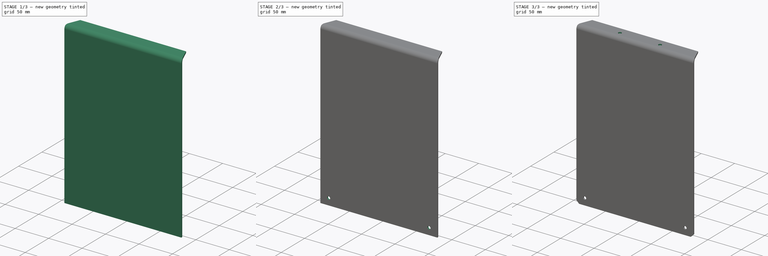
[diagram: build sequence overview — one tinted view per stage of 3, left to right]
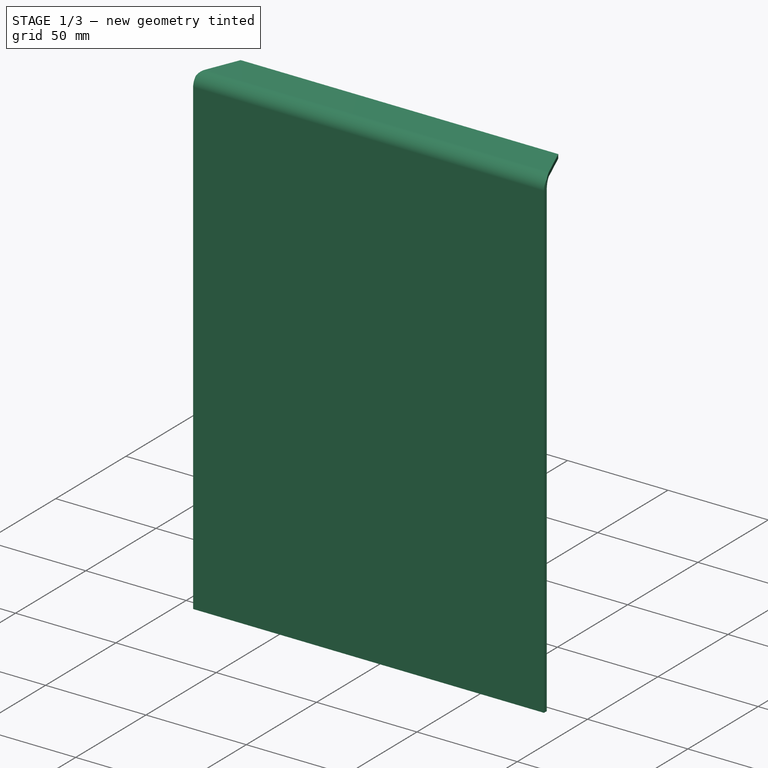
[diagram: stage 1 of 3 — iso view after this stage's code; geometry added in this stage tinted green]
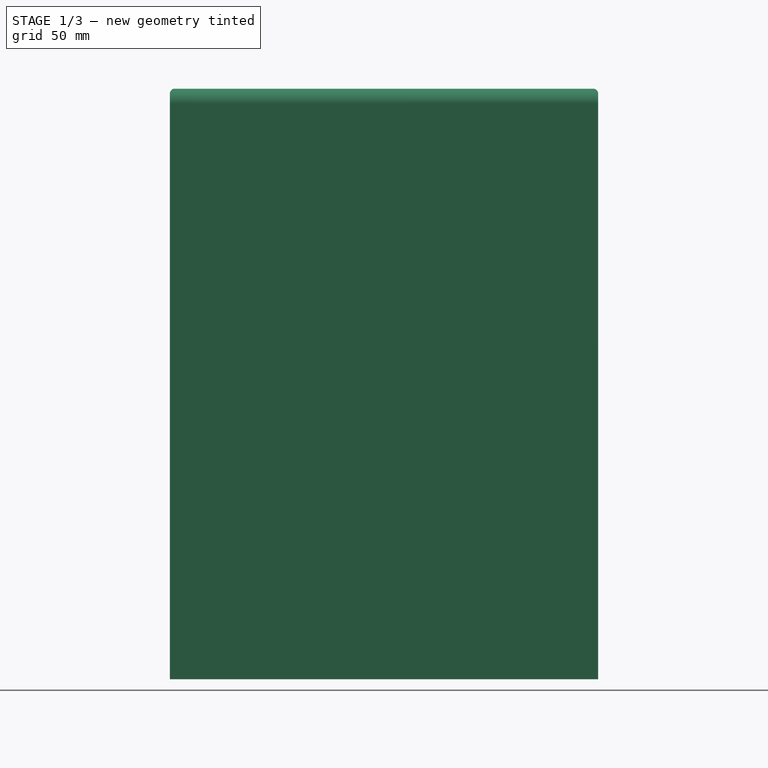
[diagram: stage 1 of 3 — front view after this stage's code; geometry added in this stage tinted green]
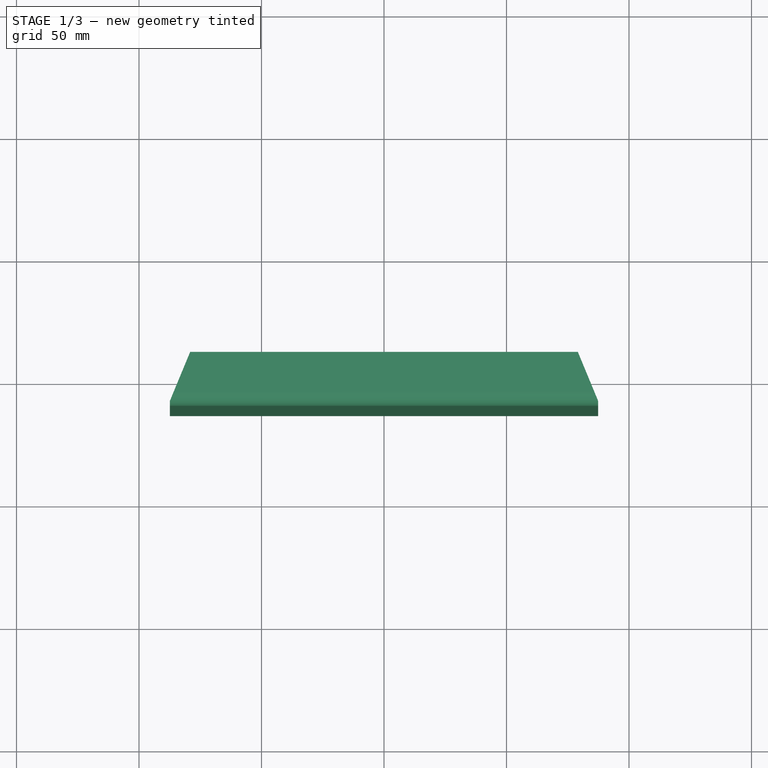
[diagram: stage 1 of 3 — top view after this stage's code; geometry added in this stage tinted green]
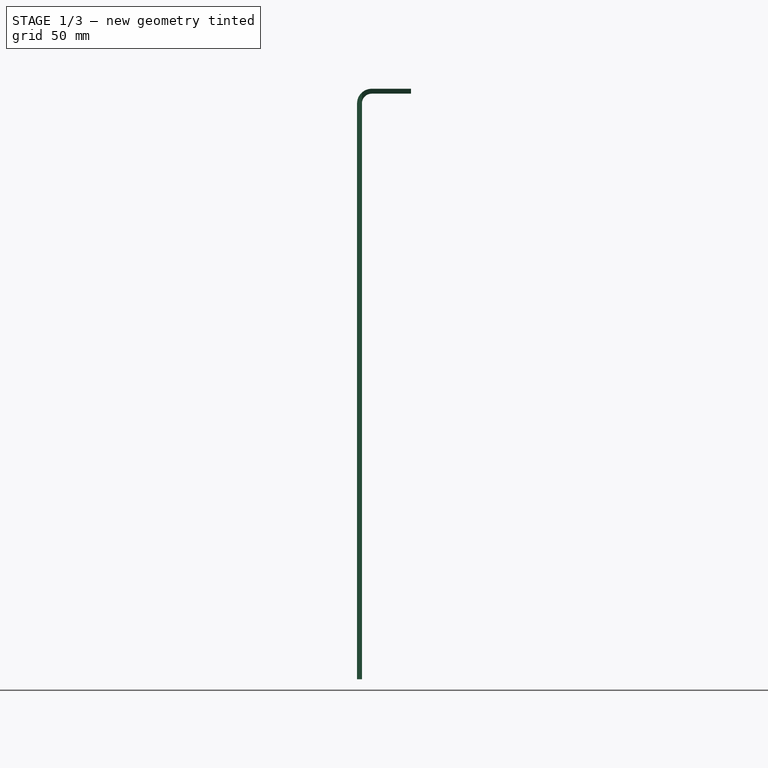
[diagram: stage 1 of 3 — right view after this stage's code; geometry added in this stage tinted green]
FCSTD DOCUMENT  (FreeCAD 1.0R39319 (Git))
Label: OCT-UFPNL-AA
License: Creative Commons Attribution 4.0
LicenseURL: https://creativecommons.org/licenses/by/4.0/
objects: Sketcher::SketchObject×4, PartDesign::Plane×2, PartDesign::Hole×2, App::Link×1, PartDesign::FeaturePython×1, PartDesign::Pocket×1, PartDesign::Chamfer×1, PartDesign::Body×1
note: 25 computed .brp shape members not serialized (recipe doc carries the construction recipe); baked Part::Feature solids carry a one-line shape summary decoded from their .brp
EXTERNAL_REF file=../master.FCStd obj=Spreadsheet

FEATURE [Sketcher::SketchObject] Sketch
  ArcFitTolerance = 1e-06
  AttachmentSupport = -> [YZ_Plane]
  FullyConstrained = true
  MakeInternals = false
  MapMode = 5
  Placement = pos=(0,0,0) rot=(0.57735,0.57735,0.57735;2.0944rad)
  expr: Constraints[5] = <<dims>>.iwFurnace / 2
  expr: Constraints[6] = <<dims>>.hUpPanel
  sketch-geometry (2):
    g0: LineSegment StartX=-211 StartY=239 StartZ=0 EndX=-191 EndY=239 EndZ=0
    g1: LineSegment StartX=-211 StartY=239 StartZ=0 EndX=-211 EndY=0 EndZ=0
  constraints (7):
    c: Horizontal(g0)
    c: DistanceX(g0,g0) = 20
    c: Coincident(g1,g0)
    c: PointOnObject(g1,g-1)
    c: Vertical(g1)
    c: DistanceX(g1,g-1) = 211
    c: DistanceY(g1,g1) = 239
FEATURE [App::Link] Link  label="dims"
  LinkedObject = -> <external ../master.FCStd>#Spreadsheet
FEATURE [Sketcher::SketchObject] Sketch001
  ArcFitTolerance = 1e-06
  AttachmentSupport = -> [XY_Plane]
  FullyConstrained = true
  MakeInternals = false
  MapMode = 5
  expr: Constraints[24] = <<dims>>.iwFurnace
  sketch-geometry (13):
    g0: LineSegment [constr] StartX=87.3991 StartY=211 StartZ=0 EndX=-87.3991 EndY=211 EndZ=0
    g1: LineSegment [constr] StartX=-87.3991 StartY=211 StartZ=0 EndX=-211 EndY=87.3991 EndZ=0
    g2: LineSegment [constr] StartX=-211 StartY=87.3991 StartZ=0 EndX=-211 EndY=-87.3991 EndZ=0
    g3: LineSegment [constr] StartX=-211 StartY=-87.3991 StartZ=0 EndX=-87.3991 EndY=-211 EndZ=0
    g4: LineSegment [constr] StartX=-87.3991 StartY=-211 StartZ=0 EndX=87.3991 EndY=-211 EndZ=0
    g5: LineSegment [constr] StartX=87.3991 StartY=-211 StartZ=0 EndX=211 EndY=-87.3991 EndZ=0
    g6: LineSegment [constr] StartX=211 StartY=-87.3991 StartZ=0 EndX=211 EndY=87.3991 EndZ=0
    g7: LineSegment [constr] StartX=211 StartY=87.3991 StartZ=0 EndX=87.3991 EndY=211 EndZ=0
    g8: Circle [constr] CenterX=0 CenterY=0 CenterZ=0 NormalX=0 NormalY=0 NormalZ=1 AngleXU=0 Radius=228.385
    g9: LineSegment StartX=0 StartY=0 StartZ=0 EndX=-100 EndY=-241.421 EndZ=0
    g10: LineSegment [constr] StartX=-100 StartY=-241.421 StartZ=0 EndX=100 EndY=-241.421 EndZ=0
    g11: LineSegment StartX=0 StartY=0 StartZ=0 EndX=100 EndY=-241.421 EndZ=0
    g12: ArcOfCircle CenterX=0 CenterY=0 CenterZ=0 NormalX=0 NormalY=0 NormalZ=1 AngleXU=0 Radius=261.313 StartAngle=5.10509 EndAngle=10.6029
  constraints (30):
    c: Coincident(g0,g1)
    c: Coincident(g1,g2)
    c: Coincident(g2,g3)
    c: Coincident(g3,g4)
    c: Coincident(g4,g5)
    c: Coincident(g5,g6)
    c: Coincident(g6,g7)
    c: Coincident(g7,g0)
    c: Equal(g0, g1-g7) x7
    c: PointOnObject(g0,g8)
    c: PointOnObject(g1,g8)
    c: PointOnObject(g2,g8)
    c: PointOnObject(g3,g8)
    c: PointOnObject(g4,g8)
    c: PointOnObject(g5,g8)
    c: PointOnObject(g6,g8)
    c: PointOnObject(g7,g8)
    c: Horizontal(g4)
    c: DistanceY(g3,g0) = 422
    c: Coincident(g8,g-1)
    c: Coincident(g10,g9)
    c: Coincident(g11,g9)
    c: Coincident(g9,g8)
    c: Coincident(g11,g10)
    c: Horizontal(g10)
    c: DistanceX(g10,g10) = 200
    c: Coincident(g12,g8)
    c: Coincident(g12,g10)
    c: Coincident(g12,g9)
    c: PointOnObject(g4,g11)
FEATURE [PartDesign::Plane] DatumPlane  label="inner wall side"
  AttachmentOffset = pos=(0,0,211) rot=(0,0,1;0rad)
  AttachmentSupport = -> [XZ_Plane]
  Length = 60
  MapMode = 5
  Placement = pos=(0,-211,4.69e-14) rot=(1,0,0;1.5708rad)
  ResizeMode = 0
  Width = 60
  expr: .AttachmentOffset.Base.z = <<dims>>.iwFurnace / 2
FEATURE [PartDesign::Plane] DatumPlane001  label="inner wall top"
  AttachmentOffset = pos=(0,0,239) rot=(0,0,1;0rad)
  AttachmentSupport = -> [XY_Plane]
  Length = 60
  MapMode = 5
  Placement = pos=(0,0,239) rot=(0,0,1;0rad)
  ResizeMode = 0
  Width = 60
  expr: .AttachmentOffset.Base.z = <<dims>>.hUpPanel
FEATURE [Sketcher::SketchObject] Sketch002
  ArcFitTolerance = 1e-06
  AttachmentSupport = -> [DatumPlane]
  FullyConstrained = true
  MakeInternals = false
  MapMode = 5
  Placement = pos=(0,-211,4.69e-14) rot=(1,0,0;1.5708rad)
  sketch-geometry (3):
    g0: Circle CenterX=75 CenterY=10 CenterZ=0 NormalX=0 NormalY=0 NormalZ=1 AngleXU=0 Radius=2
    g1: Circle CenterX=-75 CenterY=10 CenterZ=0 NormalX=0 NormalY=0 NormalZ=1 AngleXU=0 Radius=2
    g2: LineSegment [constr] StartX=75 StartY=10 StartZ=0 EndX=-75 EndY=10 EndZ=0
  constraints (7):
    c: Coincident(g2,g0)
    c: Coincident(g2,g1)
    c: DistanceX(g2,g2) = 150
    c: Equal(g0,g1)
    c: Diameter(g0) = 4
    c: Symmetric(g0,g1,g-2)
    c: DistanceY(g-1,g0) = 10
FEATURE [Sketcher::SketchObject] Sketch003
  ArcFitTolerance = 1e-06
  AttachmentSupport = -> [DatumPlane001]
  FullyConstrained = true
  MakeInternals = false
  MapMode = 5
  Placement = pos=(0,0,239) rot=(0,0,1;0rad)
  expr: Constraints[1] = <<dims>>.iwFurnace / 2 - 9
  sketch-geometry (3):
    g0: Circle CenterX=-30 CenterY=-202 CenterZ=0 NormalX=0 NormalY=0 NormalZ=1 AngleXU=0 Radius=2
    g1: Circle CenterX=30 CenterY=-202 CenterZ=0 NormalX=0 NormalY=0 NormalZ=1 AngleXU=0 Radius=2
    g2: LineSegment [constr] StartX=-30 StartY=-202 StartZ=0 EndX=30 EndY=-202 EndZ=0
  constraints (7):
    c: Diameter(g0) = 4
    c: DistanceY(g0,g-1) = 202
    c: Equal(g0,g1)
    c: Coincident(g2,g0)
    c: Coincident(g2,g1)
    c: DistanceX(g2,g2) = 60
    c: Symmetric(g0,g1,g-2)
FEATURE [PartDesign::FeaturePython] BaseBend  # WARN: FeaturePython — macro-defined, semantics opaque (R4)
  BendSide = 1
  BendSketch = -> Sketch
  MidPlane = true
  Reverse = false
  Suppressed = false
  length = 174.798
  radius = 4
  thickness = 2
  expr: length = <<dims>>.opFurnace
  expr: thickness = <<dims>>.tUpperPanel
FEATURE [PartDesign::Pocket] Pocket  label="top face trim"
  BaseFeature = -> BaseBend
  Direction = (0,0,-1)
  Length = 5
  Length2 = 5
  Profile = -> Sketch001
  ReferenceAxis = -> Sketch001 [N_Axis]
  Reversed = true
  Suppressed = false
  Type = 1
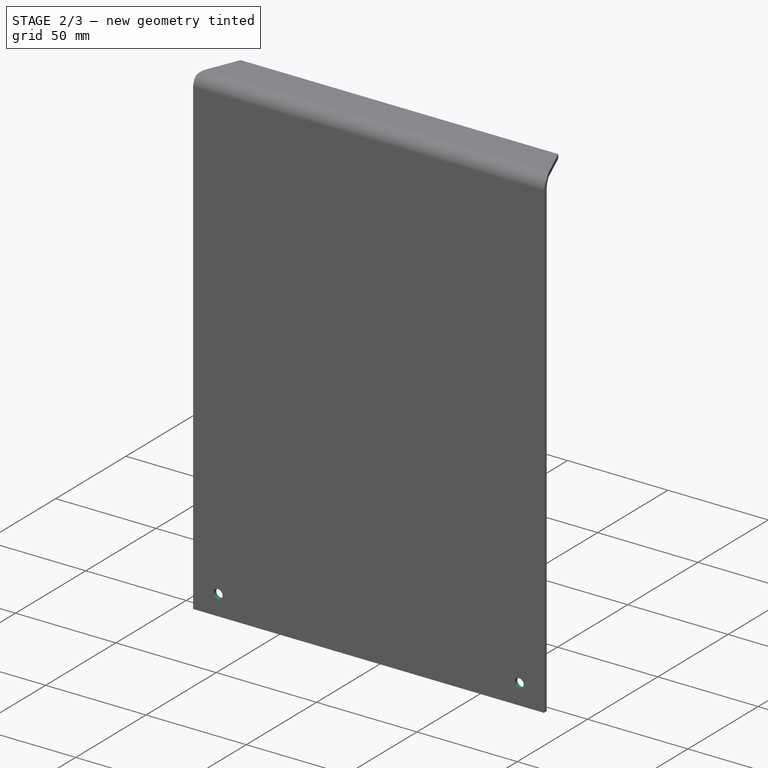
[diagram: stage 2 of 3 — iso view after this stage's code; geometry added in this stage tinted green]
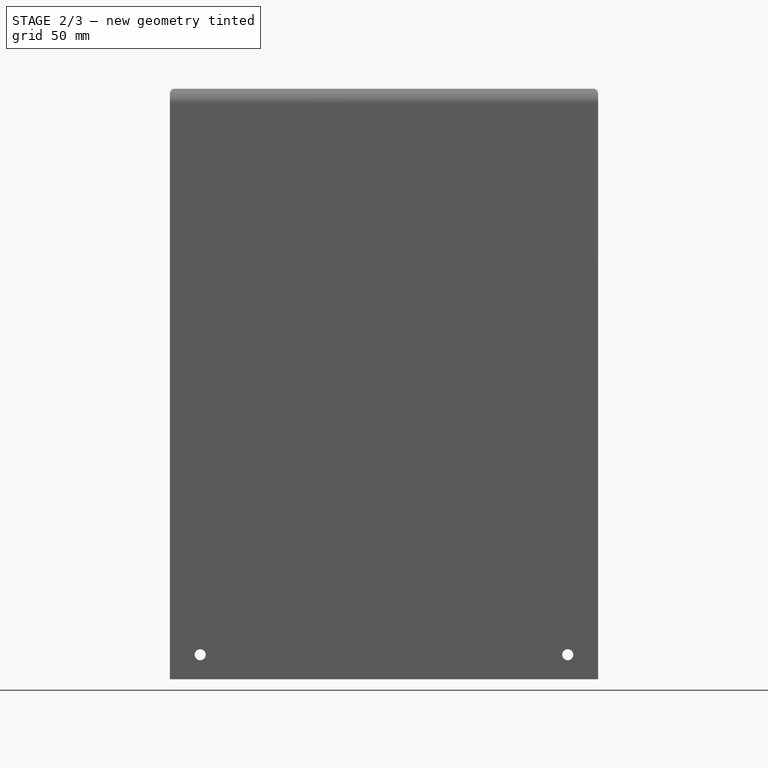
[diagram: stage 2 of 3 — front view after this stage's code; geometry added in this stage tinted green]
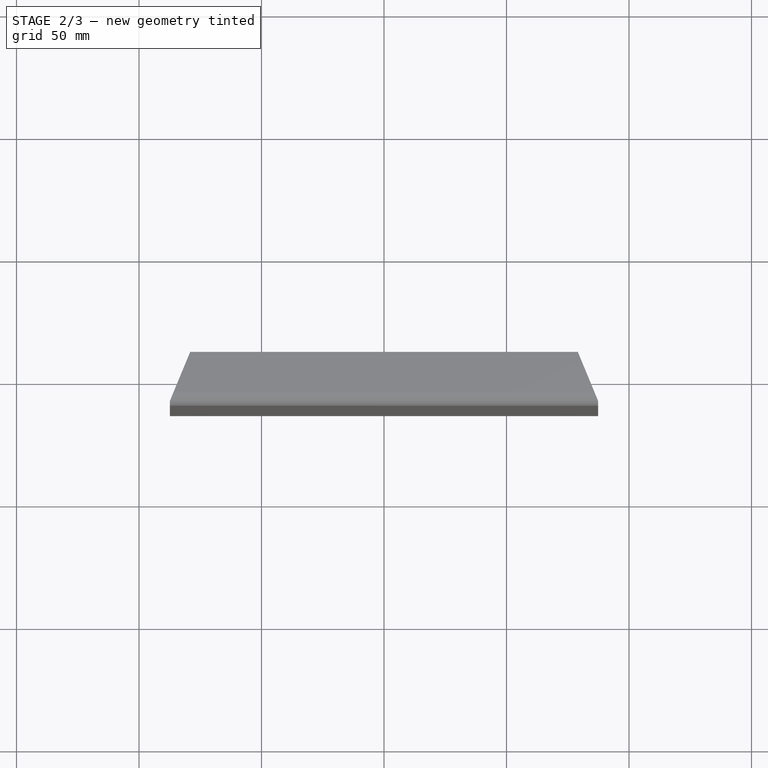
[diagram: stage 2 of 3 — top view after this stage's code; geometry added in this stage tinted green]
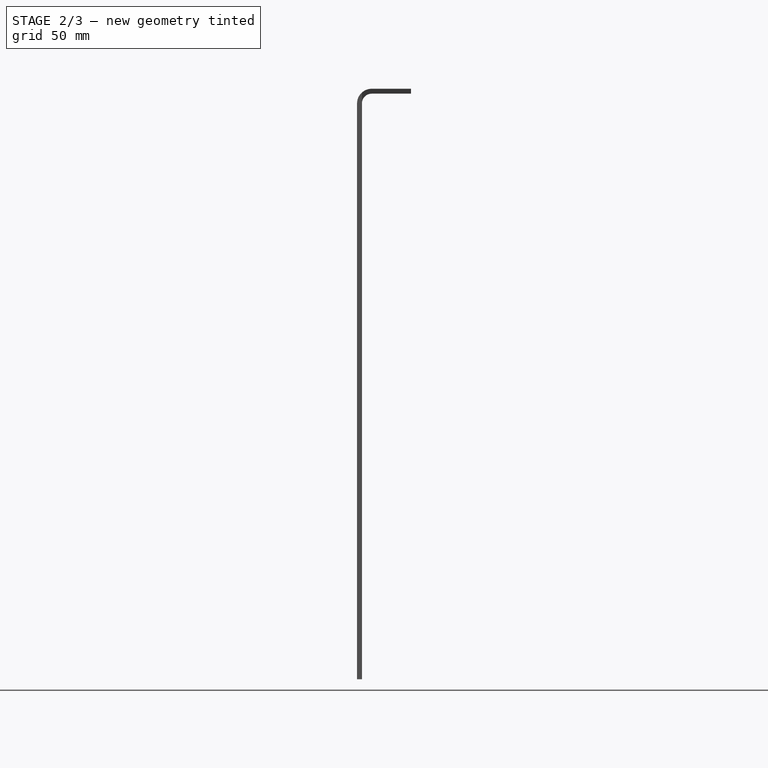
[diagram: stage 2 of 3 — right view after this stage's code; geometry added in this stage tinted green]
FEATURE [PartDesign::Hole] Hole  label="frame mount holes"
  BaseFeature = -> Pocket
  CustomThreadClearance = 0
  Depth = 588.449
  DepthType = 1
  Diameter = 4.5
  DrillForDepth = false
  DrillPoint = 1
  DrillPointAngle = 118
  HoleCutCountersinkAngle = 90
  HoleCutCustomValues = false
  HoleCutDepth = 0
  HoleCutDiameter = 6.1
  HoleCutType = 0
  ModelThread = false
  Profile = -> Sketch002
  Reversed = true
  Suppressed = false
  Tapered = false
  TaperedAngle = 90
  ThreadClass = 0
  ThreadDepth = 588.449
  ThreadDepthType = 0
  ThreadDirection = 0
  ThreadFit = 0
  ThreadSize = 11
  ThreadType = 1
  Threaded = false
  UseCustomThreadClearance = false
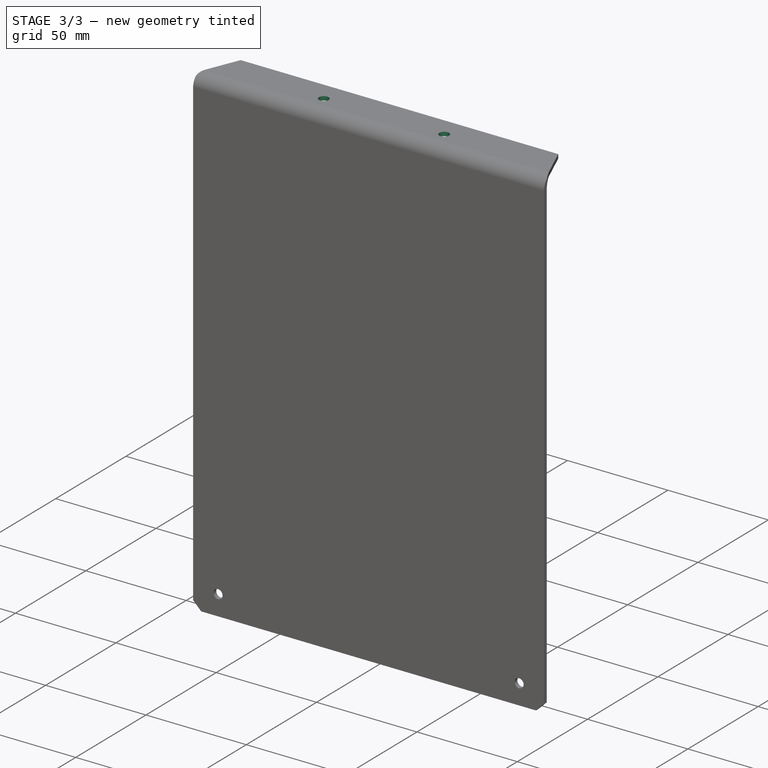
[diagram: stage 3 of 3 — iso view after this stage's code; geometry added in this stage tinted green]
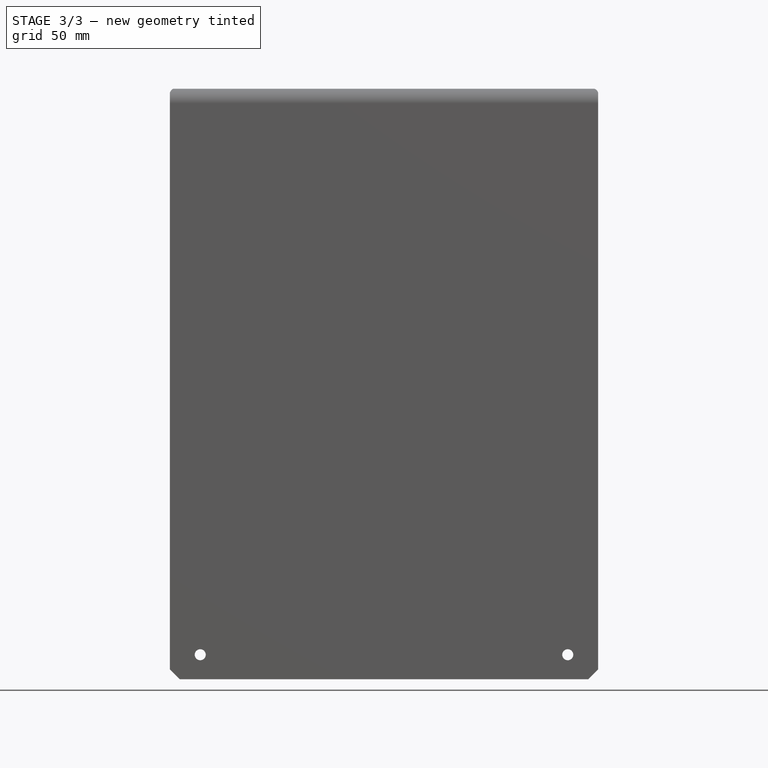
[diagram: stage 3 of 3 — front view after this stage's code; geometry added in this stage tinted green]
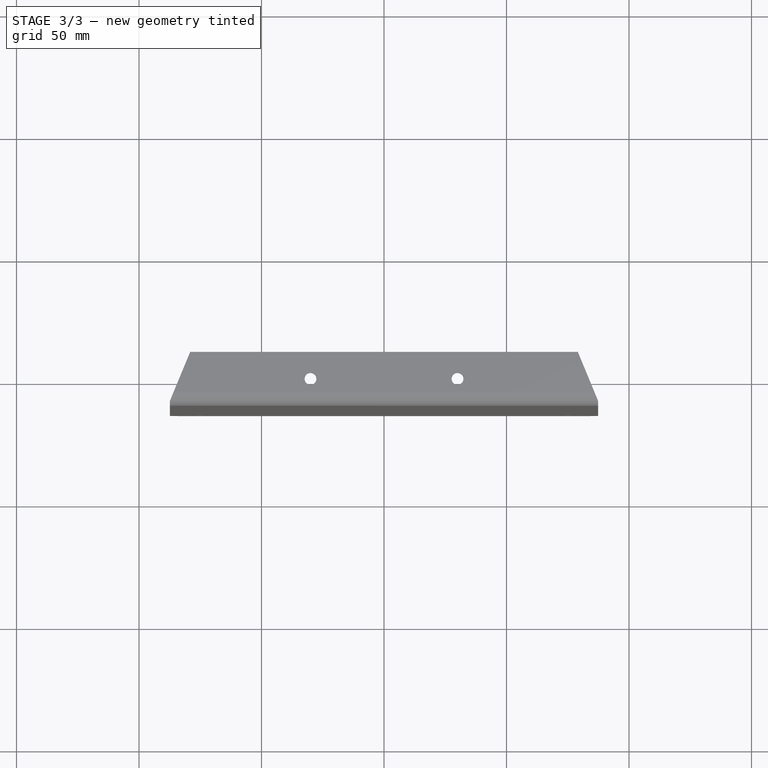
[diagram: stage 3 of 3 — top view after this stage's code; geometry added in this stage tinted green]
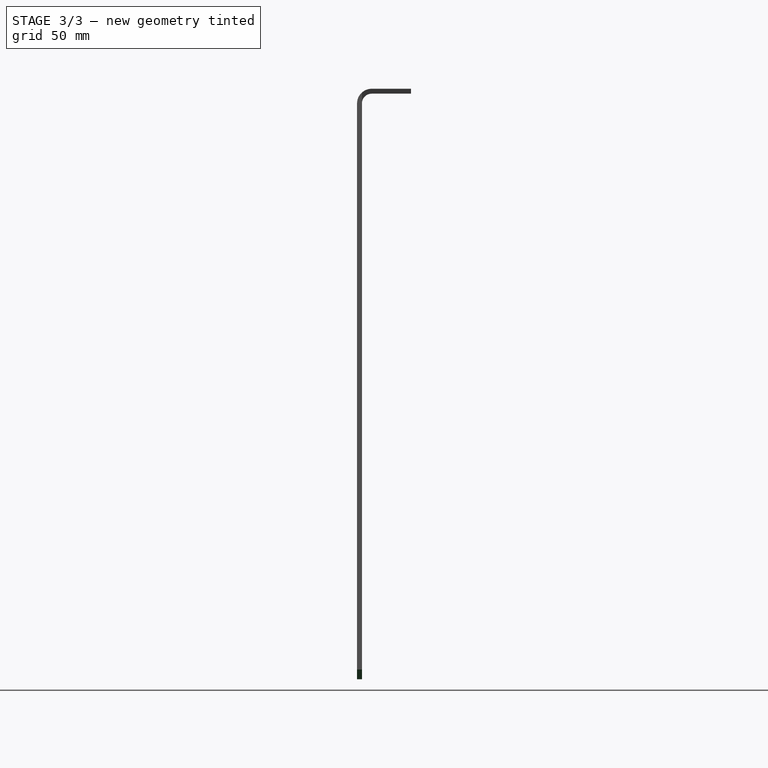
[diagram: stage 3 of 3 — right view after this stage's code; geometry added in this stage tinted green]
FEATURE [PartDesign::Hole] Hole001  label="ring mount hole"
  BaseFeature = -> Hole
  CustomThreadClearance = 0
  Depth = 603.028
  DepthType = 1
  Diameter = 4.8
  DrillForDepth = false
  DrillPoint = 1
  DrillPointAngle = 118
  HoleCutCountersinkAngle = 90
  HoleCutCustomValues = false
  HoleCutDepth = 0
  HoleCutDiameter = 6.1
  HoleCutType = 0
  ModelThread = false
  Profile = -> Sketch003
  Reversed = true
  Suppressed = false
  Tapered = false
  TaperedAngle = 90
  ThreadClass = 0
  ThreadDepth = 603.028
  ThreadDepthType = 0
  ThreadDirection = 0
  ThreadFit = 2
  ThreadSize = 11
  ThreadType = 1
  Threaded = false
  UseCustomThreadClearance = false
FEATURE [PartDesign::Chamfer] Chamfer
  Angle = 45
  Base = -> Hole001 [Edge40,Edge35]
  BaseFeature = -> Hole001
  ChamferType = 0
  FlipDirection = false
  Size = 4
  Size2 = 1
  SupportTransform = false
  Suppressed = false
  UseAllEdges = false
FEATURE [PartDesign::Body] Body  label="side panel"
  AllowCompound = false
  Group = -> [Sketch,BaseBend,Sketch001,Pocket,DatumPlane,DatumPlane001,Sketch002,Hole,Sketch003,Hole001,Chamfer]
  Origin = -> Origin
  Tip = -> Chamfer
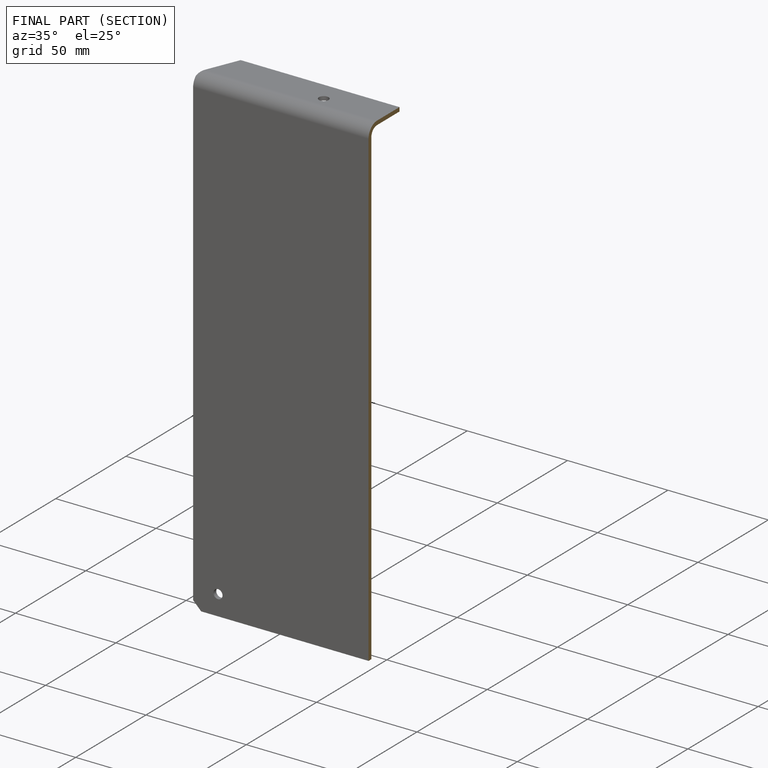
[diagram: finished part — half-section view (interior)]
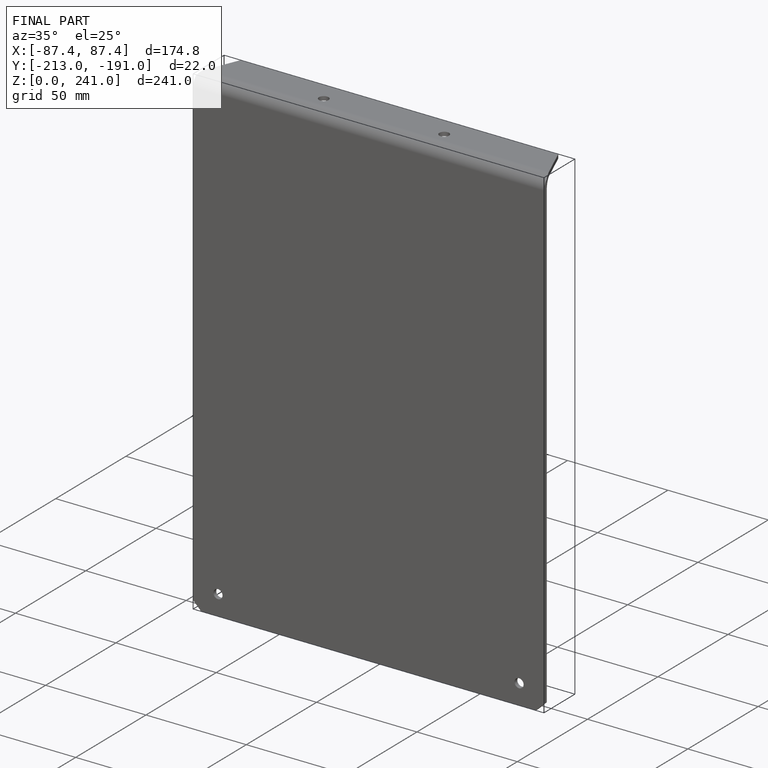
[diagram: finished part — iso view with bounding-box wireframe]
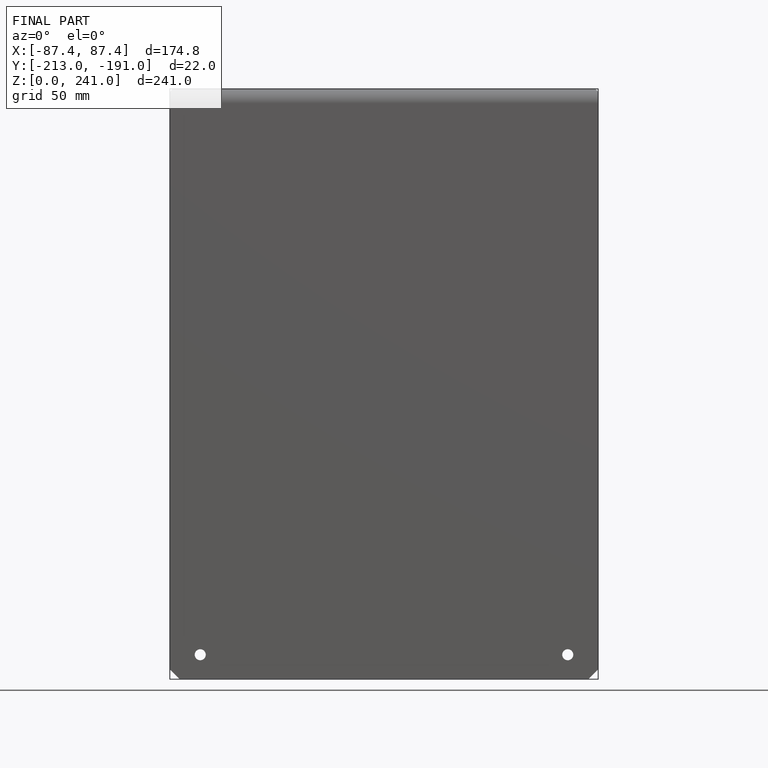
[diagram: finished part — front view with bounding-box wireframe]
